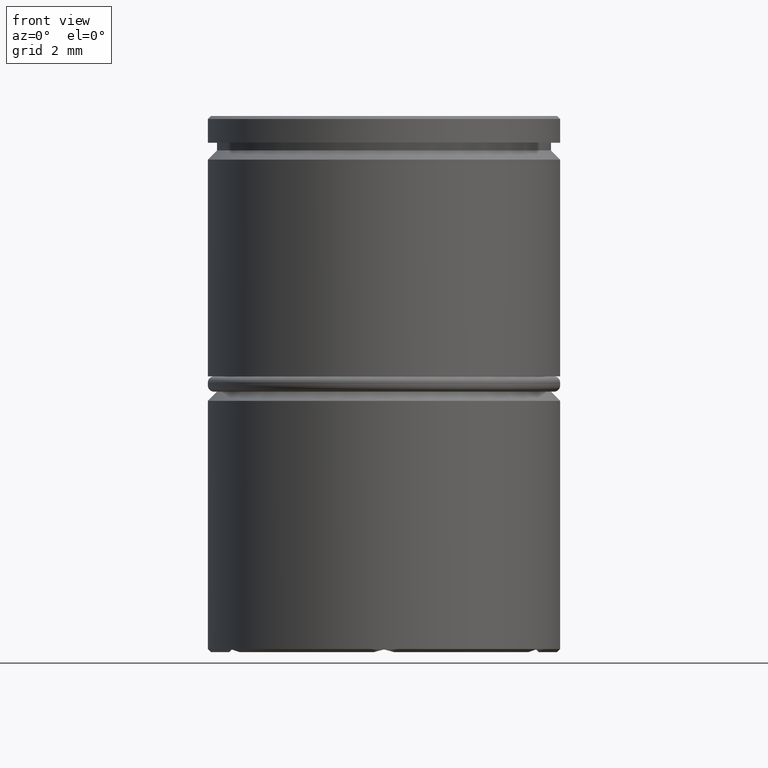
[diagram: clean part render]
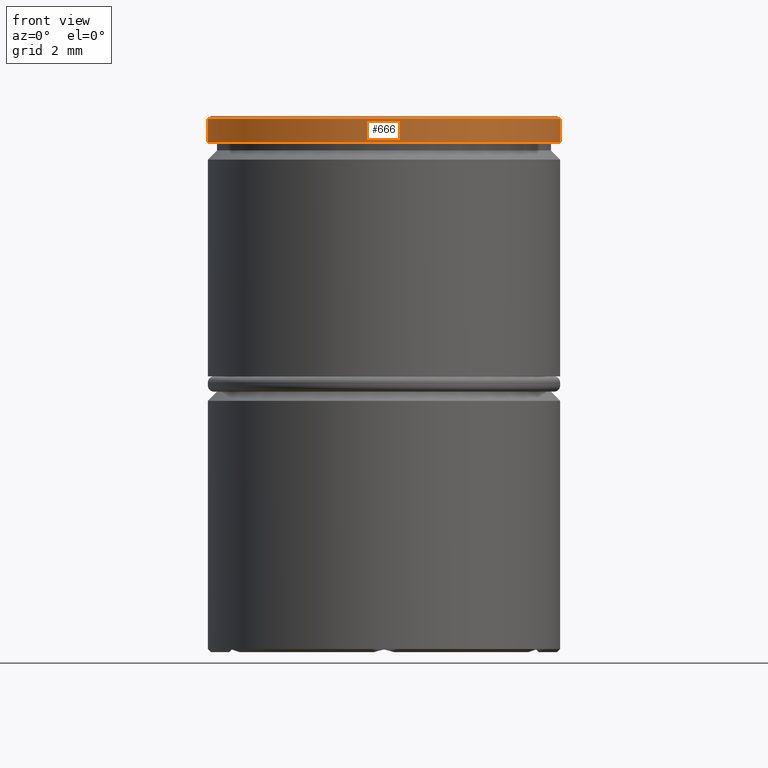
[diagram: same view with one face highlighted and labeled with its STEP entity id]
A machine part, front view. The second image highlights one B-rep face of the part: STEP entity #666.
In plain terms, the highlighted cylindrical surface (partial cylindrical patch) has radius 5.75 mm, axis along (-0, -0, 1).
Its self-contained STEP definition (entity closure, byte-faithful):
#43 = ORIENTED_EDGE ( 'NONE', *, *, #1058, .F. ) ;
#114 = CYLINDRICAL_SURFACE ( 'NONE', #991, 5.750000000000000000 ) ;
#148 = AXIS2_PLACEMENT_3D ( 'NONE', #857, #160, #585 ) ;
#150 = CARTESIAN_POINT ( 'NONE',  ( 5.750000000000000000, 0.000000000000000000, 0.000000000000000000 ) ) ;
#160 = DIRECTION ( 'NONE',  ( 0.000000000000000000, 0.000000000000000000, -1.000000000000000000 ) ) ;
#280 = ORIENTED_EDGE ( 'NONE', *, *, #330, .T. ) ;
#330 = EDGE_CURVE ( 'NONE', #458, #359, #1087, .T. ) ;
#359 = VERTEX_POINT ( 'NONE', #1316 ) ;
#458 = VERTEX_POINT ( 'NONE', #1259 ) ;
#564 = CARTESIAN_POINT ( 'NONE',  ( -5.750000000000000000, 7.041719095097280880E-16, -0.09999999999999506506 ) ) ;
#584 = ORIENTED_EDGE ( 'NONE', *, *, #973, .T. ) ;
#585 = DIRECTION ( 'NONE',  ( 1.000000000000000000, 0.000000000000000000, 0.000000000000000000 ) ) ;
#614 = DIRECTION ( 'NONE',  ( -0.000000000000000000, -0.000000000000000000, 1.000000000000000000 ) ) ;
#666 = ADVANCED_FACE ( 'NONE', ( #1083 ), #114, .T. ) ;
#723 = VECTOR ( 'NONE', #1104, 1000.000000000000000 ) ;
#726 = CIRCLE ( 'NONE', #1213, 5.750000000000000000 ) ;
#749 = CARTESIAN_POINT ( 'NONE',  ( 0.000000000000000000, 0.000000000000000000, 0.000000000000000000 ) ) ;
#750 = EDGE_LOOP ( 'NONE', ( #43, #1057, #280, #584 ) ) ;
#773 = CIRCLE ( 'NONE', #148, 5.750000000000000000 ) ;
#821 = VECTOR ( 'NONE', #1139, 1000.000000000000000 ) ;
#857 = CARTESIAN_POINT ( 'NONE',  ( 0.000000000000000000, 0.000000000000000000, -0.09999999999999506506 ) ) ;
#868 = DIRECTION ( 'NONE',  ( 1.000000000000000000, 0.000000000000000000, 0.000000000000000000 ) ) ;
#897 = VERTEX_POINT ( 'NONE', #1025 ) ;
#904 = EDGE_CURVE ( 'NONE', #897, #458, #726, .T. ) ;
#916 = CARTESIAN_POINT ( 'NONE',  ( -5.750000000000000000, 7.041719095097280880E-16, 0.000000000000000000 ) ) ;
#935 = DIRECTION ( 'NONE',  ( 1.000000000000000000, 0.000000000000000000, 0.000000000000000000 ) ) ;
#973 = EDGE_CURVE ( 'NONE', #359, #1313, #773, .T. ) ;
#991 = AXIS2_PLACEMENT_3D ( 'NONE', #749, #992, #868 ) ;
#992 = DIRECTION ( 'NONE',  ( -0.000000000000000000, -0.000000000000000000, 1.000000000000000000 ) ) ;
#1025 = CARTESIAN_POINT ( 'NONE',  ( -5.750000000000000000, 7.041719095097280880E-16, -0.8749999999999998890 ) ) ;
#1057 = ORIENTED_EDGE ( 'NONE', *, *, #904, .T. ) ;
#1058 = EDGE_CURVE ( 'NONE', #897, #1313, #1351, .T. ) ;
#1083 = FACE_OUTER_BOUND ( 'NONE', #750, .T. ) ;
#1087 = LINE ( 'NONE', #150, #723 ) ;
#1104 = DIRECTION ( 'NONE',  ( -0.000000000000000000, -0.000000000000000000, 1.000000000000000000 ) ) ;
#1139 = DIRECTION ( 'NONE',  ( -0.000000000000000000, -0.000000000000000000, 1.000000000000000000 ) ) ;
#1150 = CARTESIAN_POINT ( 'NONE',  ( 0.000000000000000000, 0.000000000000000000, -0.8749999999999998890 ) ) ;
#1213 = AXIS2_PLACEMENT_3D ( 'NONE', #1150, #614, #935 ) ;
#1259 = CARTESIAN_POINT ( 'NONE',  ( 5.750000000000000000, 0.000000000000000000, -0.8749999999999998890 ) ) ;
#1313 = VERTEX_POINT ( 'NONE', #564 ) ;
#1316 = CARTESIAN_POINT ( 'NONE',  ( 5.750000000000000000, 0.000000000000000000, -0.09999999999999506506 ) ) ;
#1351 = LINE ( 'NONE', #916, #821 ) ;